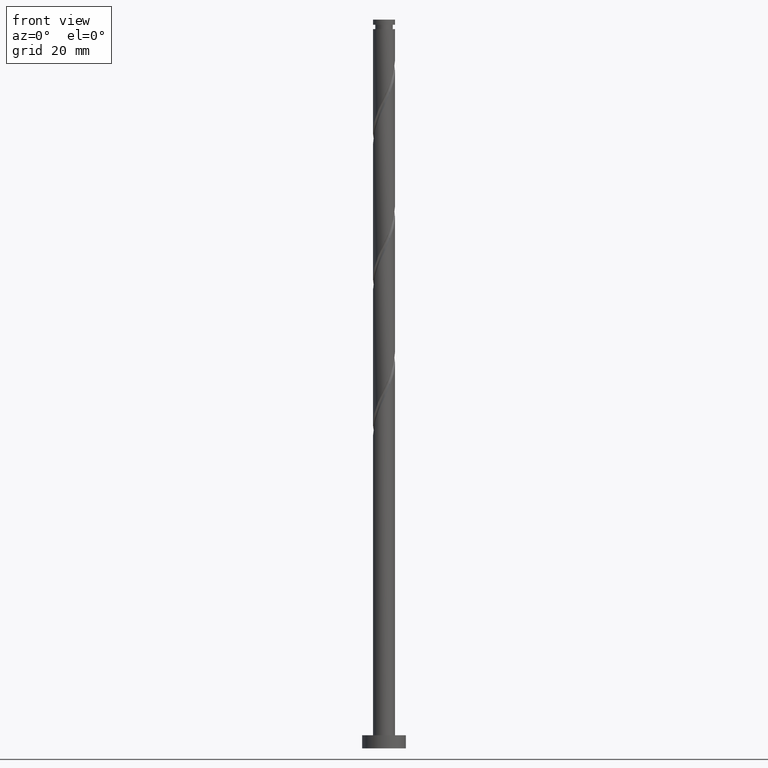
[diagram: clean part render]
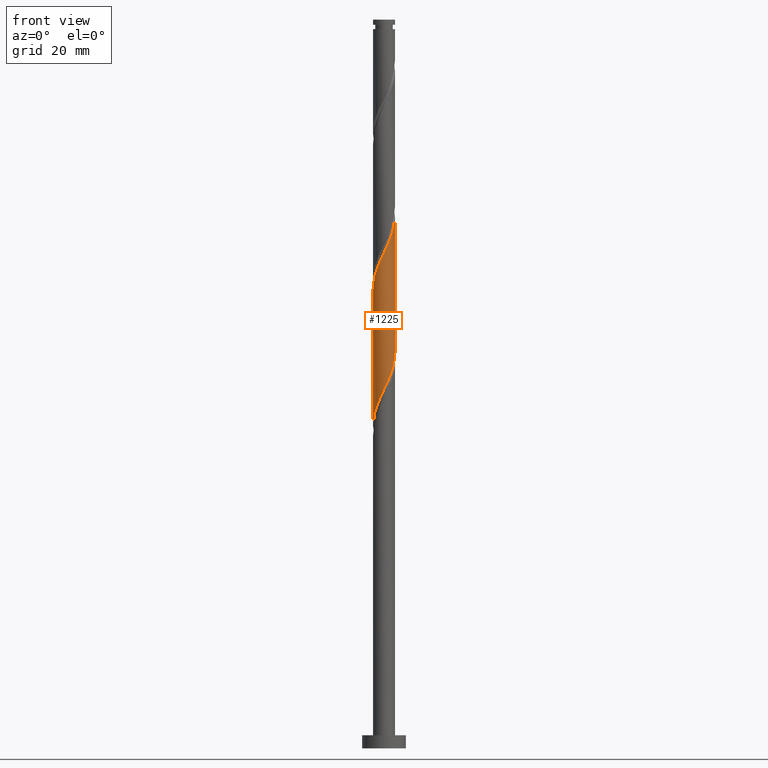
[diagram: same view with one face highlighted and labeled with its STEP entity id]
A machine part, front view. The second image highlights one B-rep face of the part: STEP entity #1225.
In plain terms, the highlighted cylindrical surface (edge-blend (fillet) strip) has radius 2.5 mm, axis along (-0, -0, -1).
Its self-contained STEP definition (entity closure, byte-faithful):
#15 = CARTESIAN_POINT ( 'NONE',  ( -1.114648691668402858, -2.237757425227747010, 79.60873334078421237 ) ) ;
#21 = CARTESIAN_POINT ( 'NONE',  ( -1.902429351286329062, -1.655019618953360361, 77.52540000745091220 ) ) ;
#31 = CARTESIAN_POINT ( 'NONE',  ( 0.1749450994641890966, -2.515496290581588745, 113.6365111185619980 ) ) ;
#32 = CARTESIAN_POINT ( 'NONE',  ( -1.655842198490352413, -1.873015379995219165, 78.21984445189534085 ) ) ;
#96 = LINE ( 'NONE', #633, #502 ) ;
#108 = CARTESIAN_POINT ( 'NONE',  ( 2.500000000000003997, -5.831975933011805756E-16, 121.6007222411297164 ) ) ;
#115 = CARTESIAN_POINT ( 'NONE',  ( 2.091011141037078858, -1.409255045694377539, 87.24762222967314074 ) ) ;
#124 = EDGE_CURVE ( 'NONE', #1146, #1707, #540, .T. ) ;
#129 = CARTESIAN_POINT ( 'NONE',  ( 1.114648691668402858, -2.237757425227751007, 115.7198444518953124 ) ) ;
#137 = CARTESIAN_POINT ( 'NONE',  ( -1.873015379995222496, -1.655842198490353079, 108.7754000074508980 ) ) ;
#146 = CARTESIAN_POINT ( 'NONE',  ( -1.409255045694376873, -2.091011141037078858, 78.91428889633979793 ) ) ;
#153 = CARTESIAN_POINT ( 'NONE',  ( 2.495279123588689973, -0.1535646293339512636, 121.2754000074508980 ) ) ;
#154 = CARTESIAN_POINT ( 'NONE',  ( -2.499999999999999556, -0.07685487914417878097, 73.89101923957798590 ) ) ;
#160 = EDGE_CURVE ( 'NONE', #1315, #174, #96, .T. ) ;
#174 = VERTEX_POINT ( 'NONE', #910 ) ;
#209 = EDGE_CURVE ( 'NONE', #1707, #174, #1261, .T. ) ;
#214 = ORIENTED_EDGE ( 'NONE', *, *, #209, .F. ) ;
#272 = CARTESIAN_POINT ( 'NONE',  ( -2.450000000000003286, -0.4974937185533100381, 105.9976222296730981 ) ) ;
#273 = CARTESIAN_POINT ( 'NONE',  ( 0.4820743581320862114, -2.475061956595790758, 83.08095556300645512 ) ) ;
#279 = CARTESIAN_POINT ( 'NONE',  ( -0.1535646293339500146, -2.495279123588689973, 112.9420666741175410 ) ) ;
#291 = DIRECTION ( 'NONE',  ( -0.000000000000000000, -0.000000000000000000, -1.000000000000000000 ) ) ;
#365 = CARTESIAN_POINT ( 'NONE',  ( 2.384503709418414275, -0.8200423376424319510, 88.63651111856204068 ) ) ;
#411 = CARTESIAN_POINT ( 'NONE',  ( -0.4974937185533100381, -2.449999999999999289, 80.99762222967311232 ) ) ;
#417 = CARTESIAN_POINT ( 'NONE',  ( 2.265956240501271868, -1.106241244887210762, 119.1920666741175552 ) ) ;
#425 = CARTESIAN_POINT ( 'NONE',  ( -2.500000000000003997, 6.018898238557055436E-15, 104.9340555744630450 ) ) ;
#433 = CARTESIAN_POINT ( 'NONE',  ( -2.475061956595790758, -0.4820743581320868776, 74.74762222967312653 ) ) ;
#455 = ORIENTED_EDGE ( 'NONE', *, *, #721, .F. ) ;
#502 = VECTOR ( 'NONE', #1177, 1000.000000000000000 ) ;
#536 = CARTESIAN_POINT ( 'NONE',  ( -1.655019618953364136, -1.902429351286330172, 109.4698444518953551 ) ) ;
#540 = LINE ( 'NONE', #1082, #1276 ) ;
#560 = CARTESIAN_POINT ( 'NONE',  ( -2.495279123588685977, -0.1535646293339484048, 74.05317778522866945 ) ) ;
#599 =( BOUNDED_CURVE ( )  B_SPLINE_CURVE ( 2, ( #425, #800, #272, #827, #1501, #1748, #137, #536, #1493, #1350, #1510, #1379, #279, #31, #817, #1210, #129, #1358, #1070, #1080, #1620, #417, #698, #1371, #153, #667, #691 ),
 .UNSPECIFIED., .F., .T. ) 
 B_SPLINE_CURVE_WITH_KNOTS ( ( 3, 2, 2, 2, 2, 2, 2, 2, 2, 2, 2, 2, 2, 3 ),
 ( 0.3045317669814464612, 0.3125000000000000000, 0.3229166666666666297, 0.3333333333333333703, 0.3437500000000000000, 0.3541666666666666297, 0.3645833333333333703, 0.3750000000000000000, 0.3854166666666666297, 0.3958333333333333703, 0.4062500000000000000, 0.4166666666666666297, 0.4270833333333333703, 0.4295317669814464612 ),
 .UNSPECIFIED. ) 
 CURVE ( )  GEOMETRIC_REPRESENTATION_ITEM ( )  RATIONAL_B_SPLINE_CURVE ( ( 0.9062941362546486079, 0.9031415850403530232, 0.9090909090909286006, 0.9013135103398467463, 0.9090909090909286006, 0.9013135103398467463, 0.9090909090909286006, 0.9013135103398467463, 0.9090909090909286006, 0.9013135103398467463, 0.9090909090909286006, 0.9013135103398467463, 0.9090909090909286006, 0.9013135103398467463, 0.9090909090909286006, 0.9013135103398467463, 0.9090909090909286006, 0.9013135103398467463, 0.9090909090909286006, 0.9013135103398467463, 0.9090909090909286006, 0.9013135103398467463, 0.9090909090909286006, 0.9013135103398467463, 0.9090909090909286006, 0.9072628343904221015, 0.9062941362546486079 ) ) 
 REPRESENTATION_ITEM ( '' )  );
#633 = CARTESIAN_POINT ( 'NONE',  ( -2.500000000000000000, 0.000000000000000000, 166.5200000000000102 ) ) ;
#667 = CARTESIAN_POINT ( 'NONE',  ( 2.500000000000003997, -0.07685487914418173694, 121.4375585531015957 ) ) ;
#691 = CARTESIAN_POINT ( 'NONE',  ( 2.500000000000004441, -5.831975933011805756E-16, 121.6007222411297164 ) ) ;
#698 = CARTESIAN_POINT ( 'NONE',  ( 2.370509098548532645, -0.7941578015096506515, 119.8865111185619696 ) ) ;
#721 = EDGE_CURVE ( 'NONE', #1315, #1146, #599, .T. ) ;
#749 = EDGE_LOOP ( 'NONE', ( #1523, #455, #1697, #214 ) ) ;
#800 = CARTESIAN_POINT ( 'NONE',  ( -2.500000000000003109, -0.2512594538148071877, 105.4674819436523450 ) ) ;
#817 = CARTESIAN_POINT ( 'NONE',  ( 0.4974937185533099271, -2.450000000000003286, 114.3309555630064125 ) ) ;
#827 = CARTESIAN_POINT ( 'NONE',  ( -2.384503709418420048, -0.8200423376424301747, 106.6920666741175694 ) ) ;
#896 = AXIS2_PLACEMENT_3D ( 'NONE', #1084, #291, #1200 ) ;
#910 = CARTESIAN_POINT ( 'NONE',  ( -2.499999999999998668, 2.235590774321208427E-15, 73.72785555154980841 ) ) ;
#973 = CARTESIAN_POINT ( 'NONE',  ( -2.499999999999998668, 2.235590774321208427E-15, 73.72785555154982262 ) ) ;
#1040 = CARTESIAN_POINT ( 'NONE',  ( 2.499999999999999556, -2.878603505396873985E-15, 90.39452221821650824 ) ) ;
#1042 = CARTESIAN_POINT ( 'NONE',  ( 2.499999999999998224, -0.2512594538148081313, 89.86109584902723668 ) ) ;
#1065 = CARTESIAN_POINT ( 'NONE',  ( 1.655019618953360361, -1.902429351286328840, 85.85873334078422658 ) ) ;
#1070 = CARTESIAN_POINT ( 'NONE',  ( 1.655842198490353079, -1.873015379995223162, 117.1087333407841982 ) ) ;
#1080 = CARTESIAN_POINT ( 'NONE',  ( 1.902429351286330172, -1.655019618953364136, 117.8031777852286979 ) ) ;
#1082 = CARTESIAN_POINT ( 'NONE',  ( 2.500000000000000000, 3.061616997868383141E-16, 166.5200000000000102 ) ) ;
#1084 = CARTESIAN_POINT ( 'NONE',  ( 0.000000000000000000, 0.000000000000000000, 166.5200000000000102 ) ) ;
#1103 = CARTESIAN_POINT ( 'NONE',  ( -2.370509098548529536, -0.7941578015096470988, 75.44206667411752676 ) ) ;
#1146 = VERTEX_POINT ( 'NONE', #108 ) ;
#1177 = DIRECTION ( 'NONE',  ( -0.000000000000000000, -0.000000000000000000, -1.000000000000000000 ) ) ;
#1197 = CARTESIAN_POINT ( 'NONE',  ( 1.873015379995219165, -1.655842198490352857, 86.55317778522864103 ) ) ;
#1200 = DIRECTION ( 'NONE',  ( -1.000000000000000000, 0.000000000000000000, 0.000000000000000000 ) ) ;
#1210 = CARTESIAN_POINT ( 'NONE',  ( 0.8200423376424301747, -2.384503709418420048, 115.0254000074508696 ) ) ;
#1220 = CARTESIAN_POINT ( 'NONE',  ( 0.1535646293339475721, -2.495279123588685977, 82.38651111856196962 ) ) ;
#1225 = ADVANCED_FACE ( 'NONE', ( #1355 ), #1514, .T. ) ;
#1229 = CARTESIAN_POINT ( 'NONE',  ( 1.380630431920282897, -2.084192795893798689, 85.16428889633976951 ) ) ;
#1261 =( BOUNDED_CURVE ( )  B_SPLINE_CURVE ( 2, ( #1714, #1042, #1588, #365, #1333, #115, #1197, #1065, #1229, #1495, #1630, #273, #1220, #1359, #411, #1749, #15, #146, #32, #21, #1352, #1372, #1103, #433, #560, #154, #973 ),
 .UNSPECIFIED., .F., .T. ) 
 B_SPLINE_CURVE_WITH_KNOTS ( ( 3, 2, 2, 2, 2, 2, 2, 2, 2, 2, 2, 2, 2, 3 ),
 ( 0.8045317669814464612, 0.8125000000000000000, 0.8229166666666666297, 0.8333333333333333703, 0.8437500000000000000, 0.8541666666666666297, 0.8645833333333333703, 0.8750000000000000000, 0.8854166666666666297, 0.8958333333333333703, 0.9062500000000000000, 0.9166666666666666297, 0.9270833333333333703, 0.9295317669814464612 ),
 .UNSPECIFIED. ) 
 CURVE ( )  GEOMETRIC_REPRESENTATION_ITEM ( )  RATIONAL_B_SPLINE_CURVE ( ( 0.9062941362546420576, 0.9031415850403465839, 0.9090909090909219392, 0.9013135103398401959, 0.9090909090909219392, 0.9013135103398401959, 0.9090909090909219392, 0.9013135103398401959, 0.9090909090909219392, 0.9013135103398401959, 0.9090909090909219392, 0.9013135103398401959, 0.9090909090909219392, 0.9013135103398401959, 0.9090909090909219392, 0.9013135103398401959, 0.9090909090909219392, 0.9013135103398401959, 0.9090909090909219392, 0.9013135103398401959, 0.9090909090909219392, 0.9013135103398401959, 0.9090909090909219392, 0.9013135103398401959, 0.9090909090909219392, 0.9072628343904154402, 0.9062941362546420576 ) ) 
 REPRESENTATION_ITEM ( '' )  );
#1276 = VECTOR ( 'NONE', #1624, 1000.000000000000000 ) ;
#1315 = VERTEX_POINT ( 'NONE', #1641 ) ;
#1333 = CARTESIAN_POINT ( 'NONE',  ( 2.237757425227746122, -1.114648691668404634, 87.94206667411754097 ) ) ;
#1350 = CARTESIAN_POINT ( 'NONE',  ( -1.106241244887210540, -2.265956240501271868, 110.8587333407842266 ) ) ;
#1352 = CARTESIAN_POINT ( 'NONE',  ( -2.084192795893798689, -1.380630431920284007, 76.83095556300642670 ) ) ;
#1355 = FACE_OUTER_BOUND ( 'NONE', #749, .T. ) ;
#1358 = CARTESIAN_POINT ( 'NONE',  ( 1.409255045694376873, -2.091011141037083298, 116.4142888963397979 ) ) ;
#1359 = CARTESIAN_POINT ( 'NONE',  ( -0.1749450994641909840, -2.515496290581584304, 81.69206667411759781 ) ) ;
#1371 = CARTESIAN_POINT ( 'NONE',  ( 2.475061956595793866, -0.4820743581320903193, 120.5809555630064693 ) ) ;
#1372 = CARTESIAN_POINT ( 'NONE',  ( -2.265956240501270091, -1.106241244887207209, 76.13651111856201226 ) ) ;
#1379 = CARTESIAN_POINT ( 'NONE',  ( -0.4820743581320890425, -2.475061956595794310, 112.2476222296731123 ) ) ;
#1493 = CARTESIAN_POINT ( 'NONE',  ( -1.380630431920286449, -2.084192795893800465, 110.1642888963397837 ) ) ;
#1495 = CARTESIAN_POINT ( 'NONE',  ( 1.106241244887207209, -2.265956240501270091, 84.46984445189532664 ) ) ;
#1501 = CARTESIAN_POINT ( 'NONE',  ( -2.237757425227750119, -1.114648691668403746, 107.3865111185619980 ) ) ;
#1510 = CARTESIAN_POINT ( 'NONE',  ( -0.7941578015096503185, -2.370509098548532645, 111.5531777852286552 ) ) ;
#1514 = CYLINDRICAL_SURFACE ( 'NONE', #896, 2.500000000000000000 ) ;
#1523 = ORIENTED_EDGE ( 'NONE', *, *, #124, .F. ) ;
#1588 = CARTESIAN_POINT ( 'NONE',  ( 2.449999999999999289, -0.4974937185533103712, 89.33095556300644091 ) ) ;
#1620 = CARTESIAN_POINT ( 'NONE',  ( 2.084192795893800021, -1.380630431920287338, 118.4976222296730839 ) ) ;
#1624 = DIRECTION ( 'NONE',  ( -0.000000000000000000, -0.000000000000000000, -1.000000000000000000 ) ) ;
#1630 = CARTESIAN_POINT ( 'NONE',  ( 0.7941578015096470988, -2.370509098548529980, 83.77540000745086957 ) ) ;
#1641 = CARTESIAN_POINT ( 'NONE',  ( -2.500000000000003553, 6.018898238557055436E-15, 104.9340555744630450 ) ) ;
#1697 = ORIENTED_EDGE ( 'NONE', *, *, #160, .T. ) ;
#1707 = VERTEX_POINT ( 'NONE', #1040 ) ;
#1714 = CARTESIAN_POINT ( 'NONE',  ( 2.499999999999999112, -2.878603505396873590E-15, 90.39452221821650824 ) ) ;
#1748 = CARTESIAN_POINT ( 'NONE',  ( -2.091011141037083298, -1.409255045694377317, 108.0809555630064693 ) ) ;
#1749 = CARTESIAN_POINT ( 'NONE',  ( -0.8200423376424309518, -2.384503709418414719, 80.30317778522869787 ) ) ;